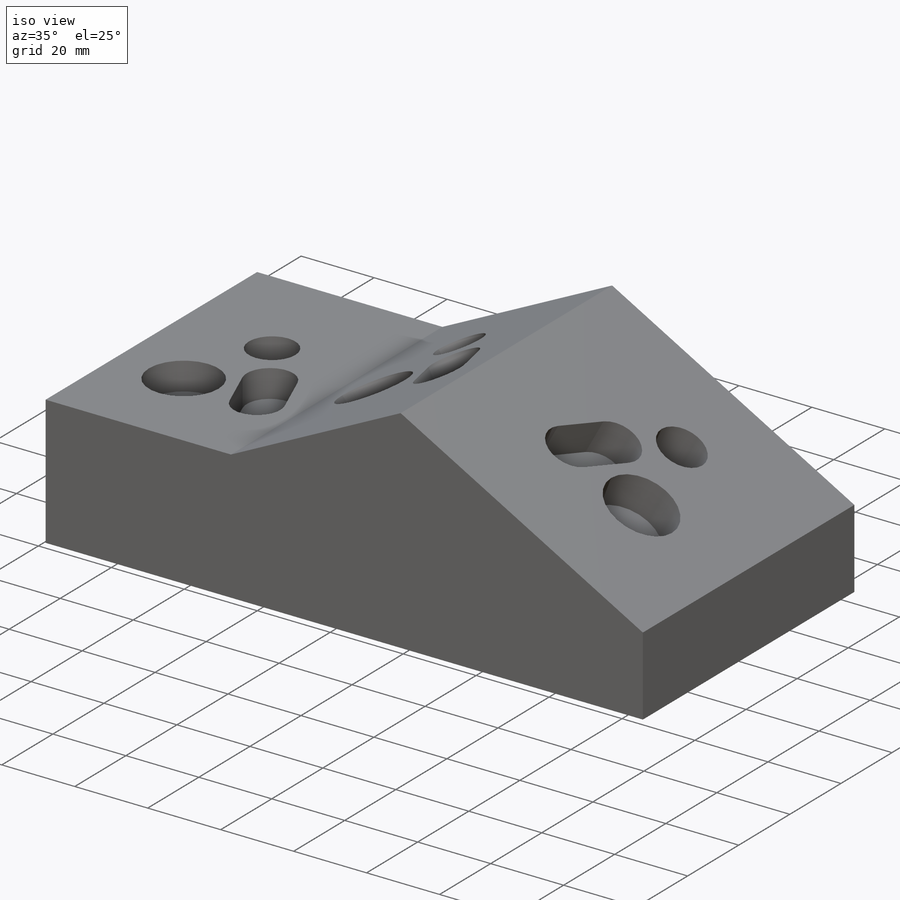
[diagram: iso view]
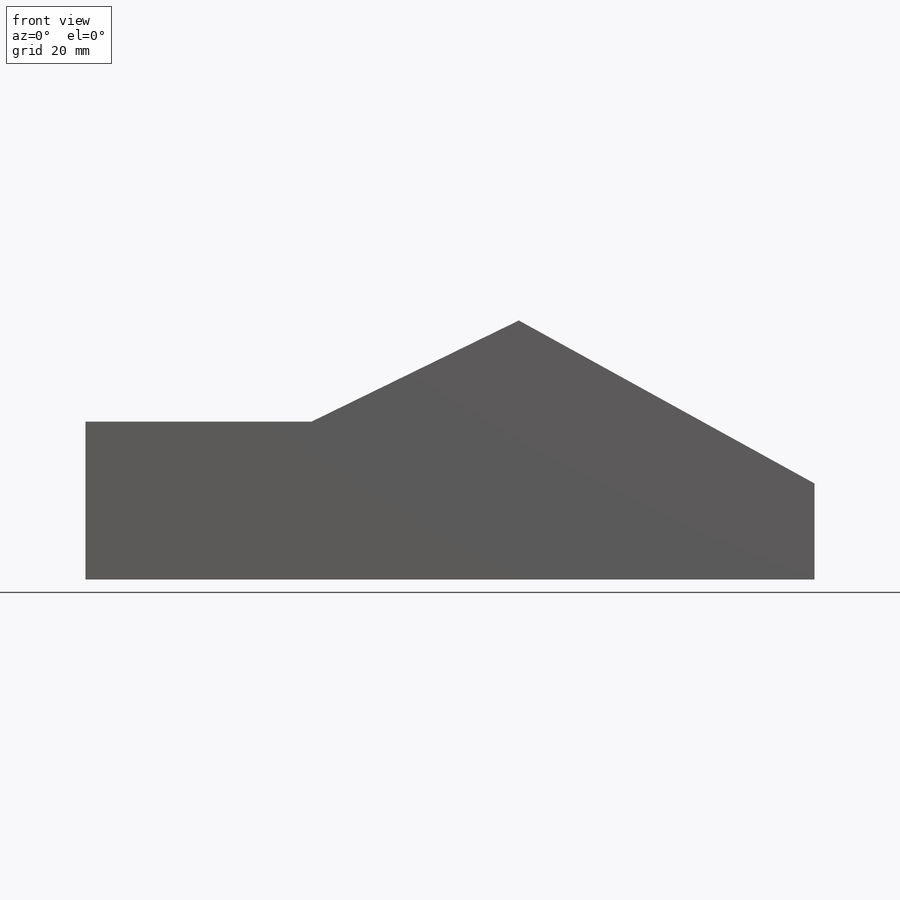
[diagram: front view]
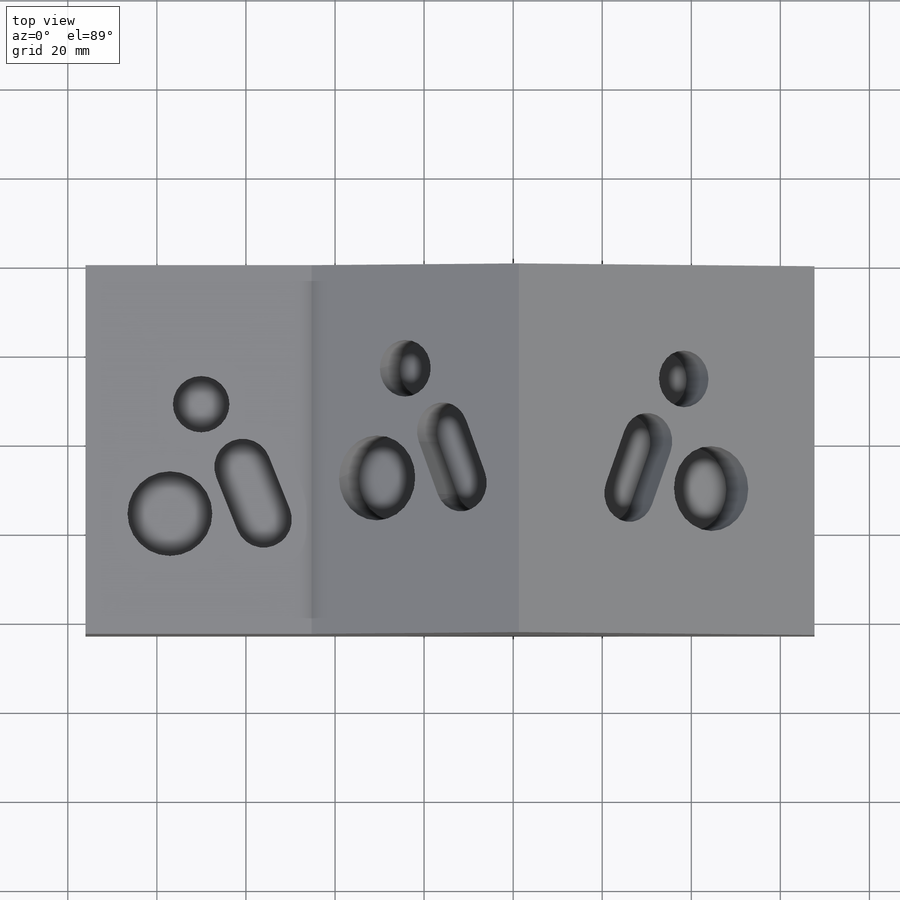
[diagram: top view]
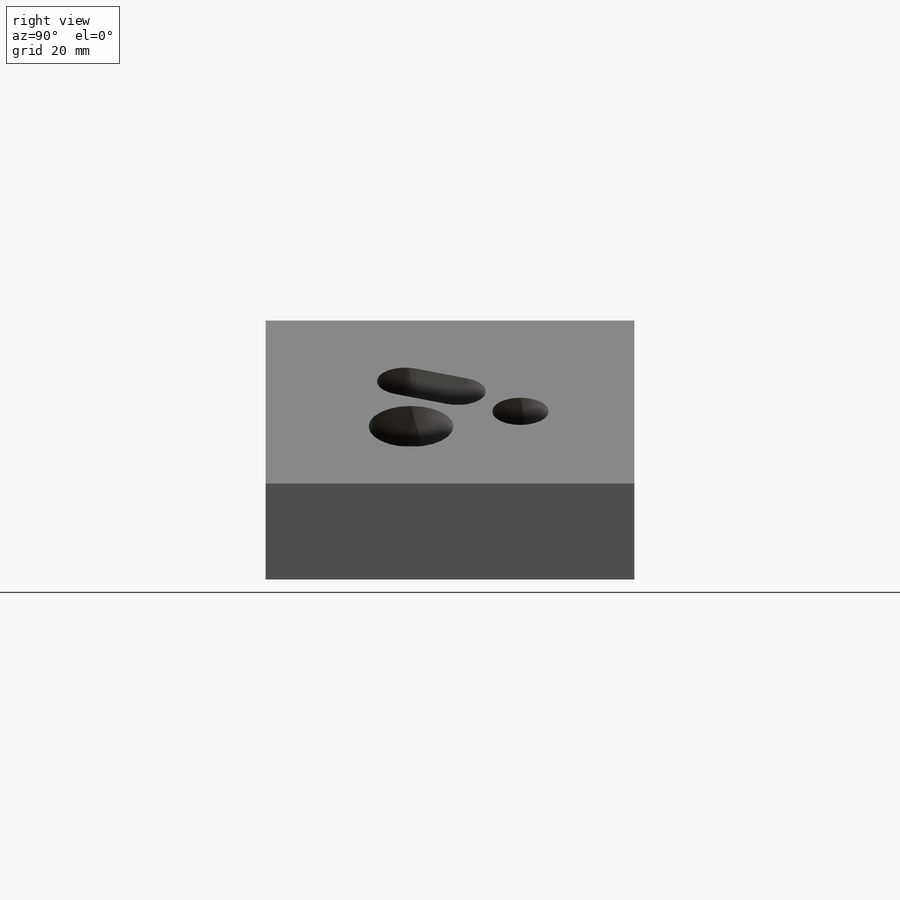
[diagram: right view]
SOLIDWORKS PART (.sldprt)
format: sldprt  version: not decoded by parser v0  size: 195,584 bytes
history: native  units: mm
features: sketch x4, cut_extrude x3, material x1, extrude x1 + 1 further entry (+10 scaffold rows collapsed)
feature tree (20):
  scaffold x10  (default folders/planes/origin — collapsed)
  material  "Material <not specified>"
  "Annotations"  RD1=12.7mm RD2=12.7mm RD3=19.05mm RD4=19.05mm
  sketch  "Sketch1"
  extrude  "Boss-Extrude1"  Depth=82.804mm
  sketch  "Sketch2"  dims[D1=12.7mm D2=19.05mm D4=6.35mm D3=12.7mm]
  cut_extrude  "cut pattern"  Depth=7.62mm
  sketch  "Sketch3"  dims[c1.D1=12.7mm c1.D2=19.05mm c1.D4=6.35mm c1.D3=12.7mm c2.D1=~23.344404mm c2.D2=~23.385143mm c2.D3=~21.762225deg]
  cut_extrude  "Cut-Extrude2"  Depth=10.16mm
  sketch  "Sketch4"  dims[D1=12.7mm D2=19.05mm D4=6.35mm D3=12.7mm]
  cut_extrude  "Cut-Extrude3"  Depth=10.16mm
decode coverage: 7 of 8 modeling features carry decoded parameters; 1 rows unclassified (native names shown)
note: ~ marks probable driven/reference dimensions
note: suppression state not decoded; provenance and decode notes live in map.json
